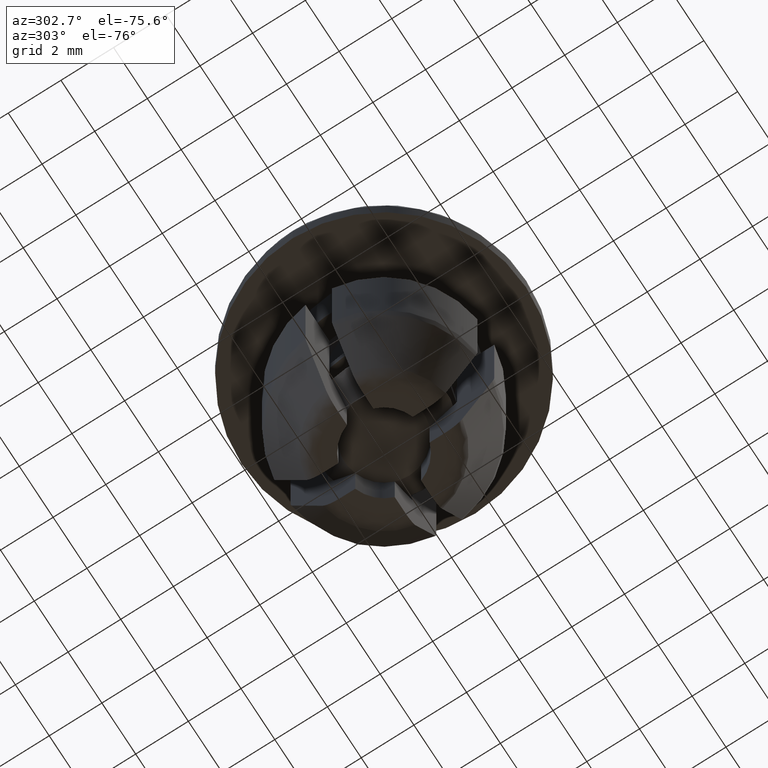
[diagram: clean part render]
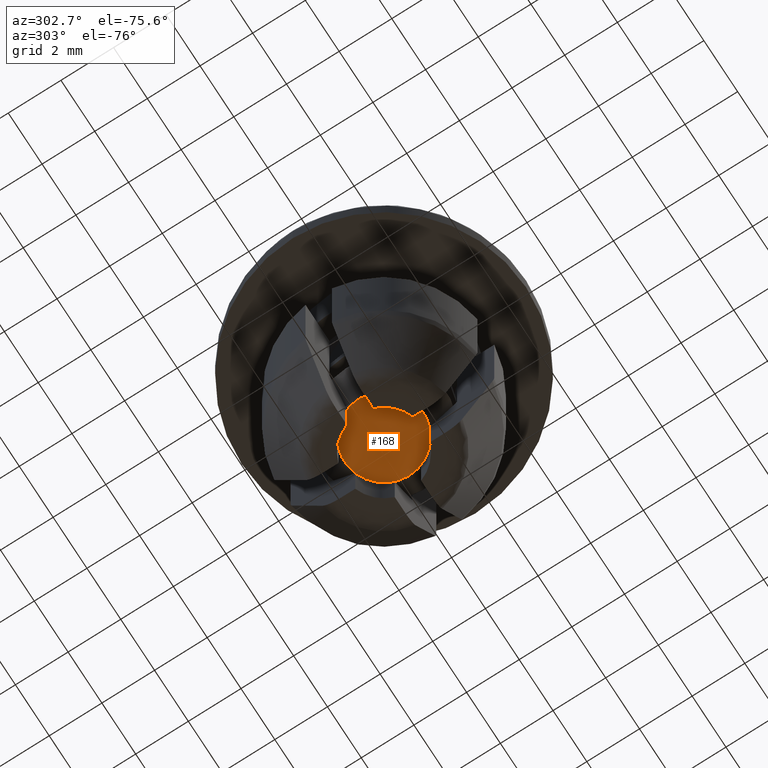
[diagram: same view with one face highlighted and labeled with its STEP entity id]
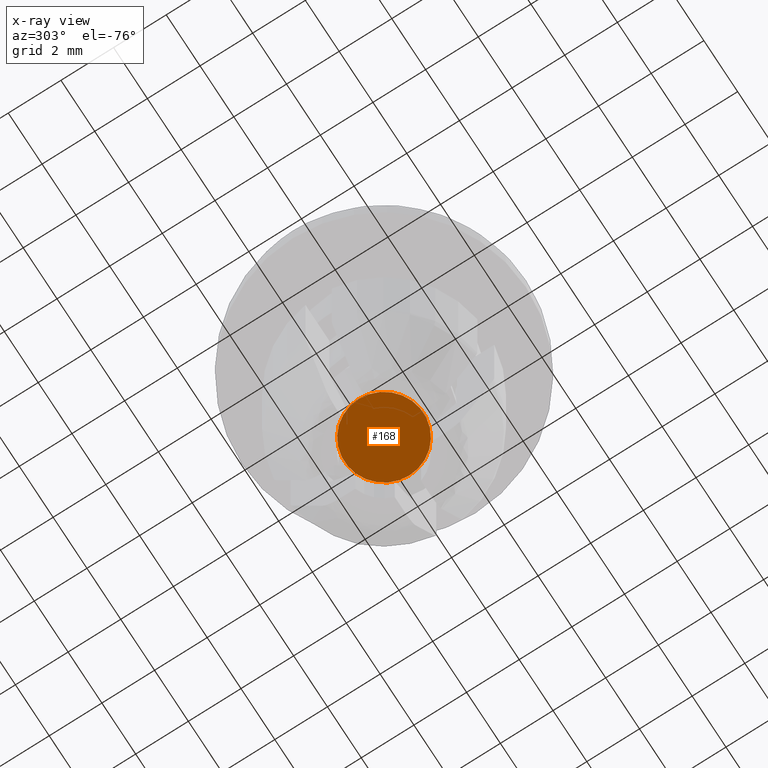
[diagram: x-ray of the same camera — body ghosted, the highlighted face saturated]
A machine part, auxiliary view. The second image highlights one B-rep face of the part: STEP entity #168.
The next image is the same camera in x-ray: the body ghosted, the highlighted face saturated — about 0% of this face is hidden behind the body in this view.
In plain terms, the highlighted planar face has unit normal (0, 0, -1).
Its self-contained STEP definition (entity closure, byte-faithful):
#168=ADVANCED_FACE('',(#754),#753,.T.);
#753=PLANE('',#1406);
#754=FACE_OUTER_BOUND('',#1407,.T.);
#1403=CARTESIAN_POINT('',(3.44977000000E+00,-3.11748360753E+00,-1.29000000000E+01));
#1404=DIRECTION('',(0.00000000000E+00,0.00000000000E+00,-1.00000000000E+00));
#1405=DIRECTION('',(-1.00000000000E+00,0.00000000000E+00,0.00000000000E+00));
#1406=AXIS2_PLACEMENT_3D('',#1403,#1404,#1405);
#1407=EDGE_LOOP('',(#1858,#1859));
#1858=ORIENTED_EDGE('',*,*,#2096,.T.);
#1859=ORIENTED_EDGE('',*,*,#2097,.T.);
#2096=EDGE_CURVE('',#3136,#3137,#3138,.T.);
#2097=EDGE_CURVE('',#3137,#3136,#3144,.T.);
#3136=VERTEX_POINT('',#4091);
#3137=VERTEX_POINT('',#4092);
#3138=CIRCLE('',#4096,1.49990000000E+00);
#3144=CIRCLE('',#4100,1.49990000000E+00);
#4091=CARTESIAN_POINT('',(-1.49990000000E+00,0.00000000000E+00,-1.29000000000E+01));
#4092=CARTESIAN_POINT('',(1.49990000000E+00,0.00000000000E+00,-1.29000000000E+01));
#4093=CARTESIAN_POINT('',(0.00000000000E+00,0.00000000000E+00,-1.29000000000E+01));
#4094=DIRECTION('',(-0.00000000000E+00,0.00000000000E+00,-1.00000000000E+00));
#4095=DIRECTION('',(-1.00000000000E+00,-1.22460635382E-16,0.00000000000E+00));
#4096=AXIS2_PLACEMENT_3D('',#4093,#4094,#4095);
#4097=CARTESIAN_POINT('',(0.00000000000E+00,0.00000000000E+00,-1.29000000000E+01));
#4098=DIRECTION('',(-0.00000000000E+00,0.00000000000E+00,-1.00000000000E+00));
#4099=DIRECTION('',(-1.00000000000E+00,-1.22460635382E-16,0.00000000000E+00));
#4100=AXIS2_PLACEMENT_3D('',#4097,#4098,#4099);